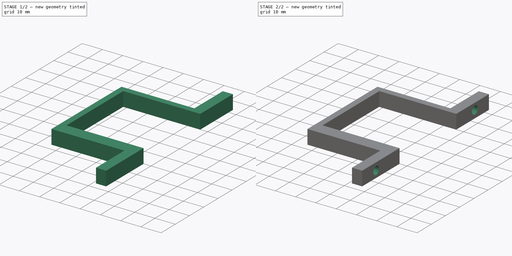
[diagram: build sequence overview — one tinted view per stage of 2, left to right]
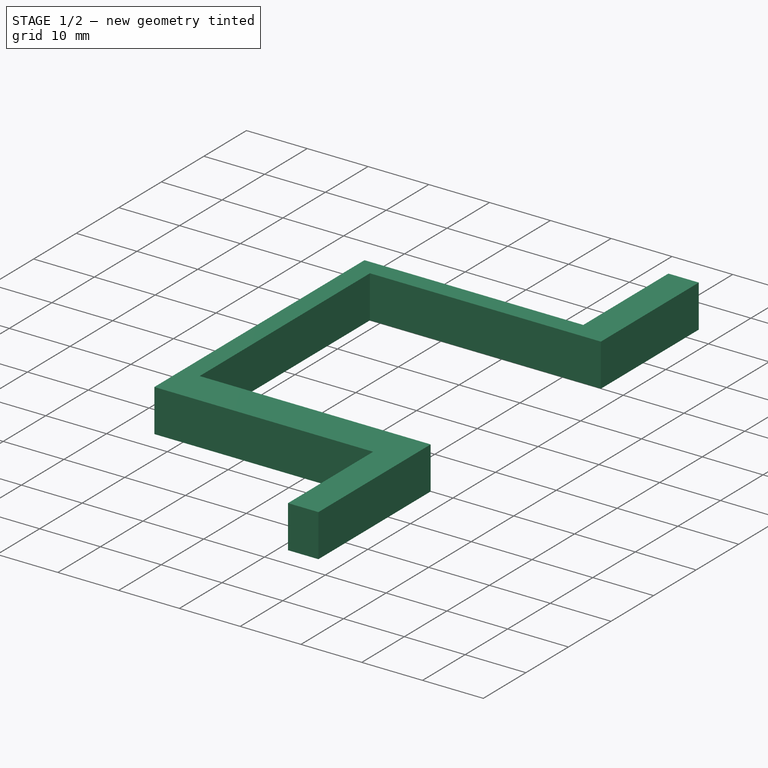
[diagram: stage 1 of 2 — iso view after this stage's code; geometry added in this stage tinted green]
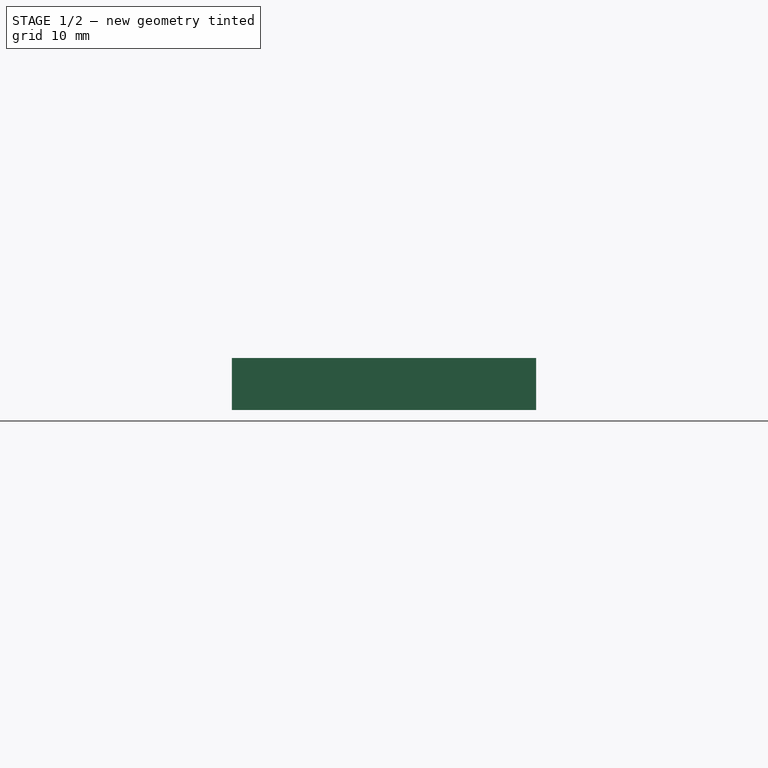
[diagram: stage 1 of 2 — front view after this stage's code; geometry added in this stage tinted green]
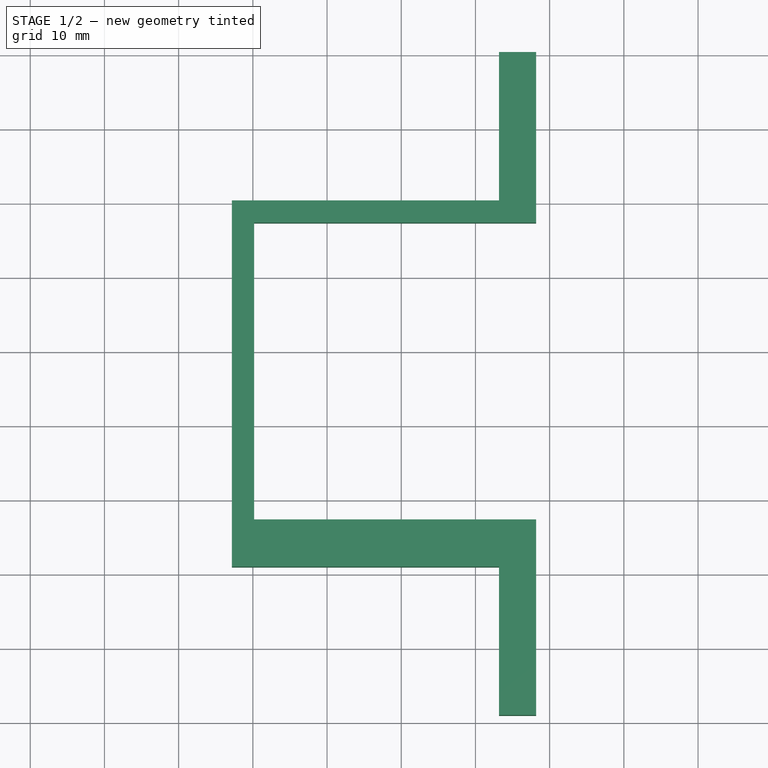
[diagram: stage 1 of 2 — top view after this stage's code; geometry added in this stage tinted green]
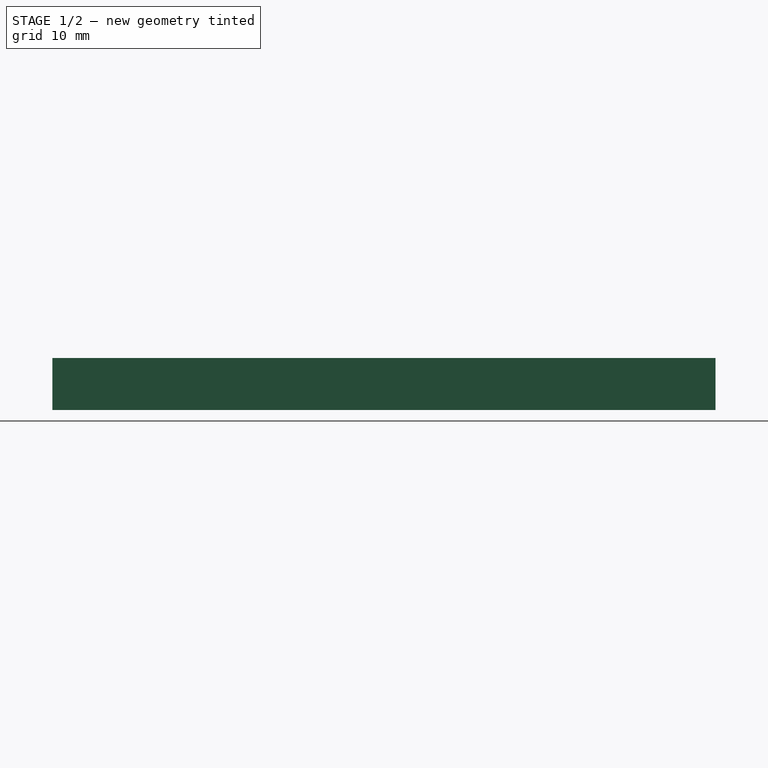
[diagram: stage 1 of 2 — right view after this stage's code; geometry added in this stage tinted green]
FCSTD DOCUMENT  (FreeCAD 0.21R33771 (Git))
Label: кривой крепёж
License: All rights reserved
LicenseURL: https://en.wikipedia.org/wiki/All_rights_reserved
objects: Sketcher::SketchObject×2, PartDesign::Pad×1, PartDesign::Hole×1, PartDesign::Body×1
note: 7 computed .brp shape members not serialized (recipe doc carries the construction recipe); baked Part::Feature solids carry a one-line shape summary decoded from their .brp

FEATURE [Sketcher::SketchObject] Sketch
  FullyConstrained = false
  MapMode = 5
  Support = -> [XY_Plane]
  sketch-geometry (12):
    g0: LineSegment StartX=3.17489 StartY=60.3626 StartZ=0 EndX=3.17489 EndY=40.3626 EndZ=0
    g1: LineSegment StartX=3.17489 StartY=40.3626 StartZ=0 EndX=-32.8251 EndY=40.3626 EndZ=0
    g2: LineSegment StartX=-32.8251 StartY=40.3626 StartZ=0 EndX=-32.8251 EndY=-9.0049 EndZ=0
    g3: LineSegment StartX=-32.8251 StartY=-9.0049 StartZ=0 EndX=3.17489 EndY=-9.0049 EndZ=0
    g4: LineSegment StartX=3.17489 StartY=-9.0049 StartZ=0 EndX=3.17489 EndY=-29.0049 EndZ=0
    g5: LineSegment StartX=3.17489 StartY=-29.0049 StartZ=0 EndX=8.17489 EndY=-29.0049 EndZ=0
    g6: LineSegment StartX=8.17489 StartY=60.3626 StartZ=0 EndX=3.17489 EndY=60.3626 EndZ=0
    g7: LineSegment StartX=8.17489 StartY=-29.0049 StartZ=0 EndX=8.17489 EndY=-2.63743 EndZ=0
    g8: LineSegment StartX=8.17489 StartY=-2.63743 StartZ=0 EndX=-29.8251 EndY=-2.63743 EndZ=0
    g9: LineSegment StartX=-29.8251 StartY=-2.63743 StartZ=0 EndX=-29.8251 EndY=37.3626 EndZ=0
    g10: LineSegment StartX=-29.8251 StartY=37.3626 StartZ=0 EndX=8.17489 EndY=37.3626 EndZ=0
    g11: LineSegment StartX=8.17489 StartY=37.3626 StartZ=0 EndX=8.17489 EndY=60.3626 EndZ=0
  constraints (33):
    c: Vertical(g0)
    c: Coincident(g0,g1)
    c: Horizontal(g1)
    c: Coincident(g1,g2)
    c: Vertical(g2)
    c: Coincident(g2,g3)
    c: Horizontal(g3)
    c: Coincident(g3,g4)
    c: Vertical(g4)
    c: DistanceY(g4,g4) = 20
    c: Equal(g4,g0)
    c: Equal(g3,g1)
    c: Coincident(g4,g5)
    c: Horizontal(g5)
    c: Coincident(g6,g0)
    c: Perpendicular(g0,g6)
    c: DistanceX(g6,g6) = 5
    c: Coincident(g5,g7)
    c: Vertical(g7)
    c: Coincident(g7,g8)
    c: Horizontal(g8)
    c: Coincident(g8,g9)
    c: Vertical(g9)
    c: Coincident(g9,g10)
    c: Horizontal(g10)
    c: Coincident(g10,g11)
    c: Coincident(g11,g6)
    c: Vertical(g11)
    c: DistanceY(g9,g9) = 40
    c: DistanceX(g10,g10) = 38
    c: DistanceX(g1,g9) = 3
    c: DistanceY(g9,g1) = 3
    c: Equal(g6,g5)
FEATURE [PartDesign::Pad] Pad
  Direction = (0,0,1)
  Length = 7
  Length2 = 10
  Profile = -> Sketch
  ReferenceAxis = -> Sketch [N_Axis]
  Type = 0
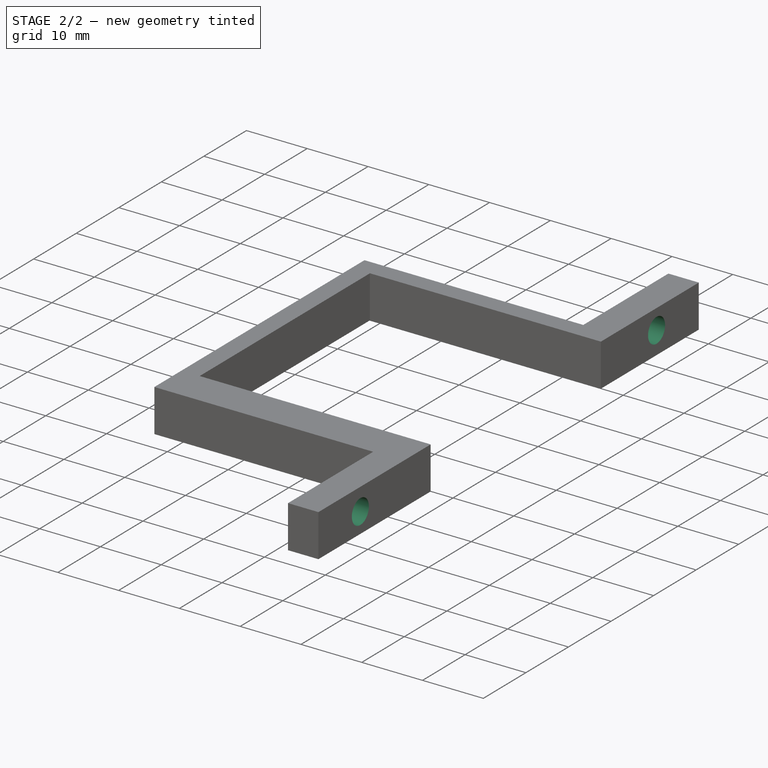
[diagram: stage 2 of 2 — iso view after this stage's code; geometry added in this stage tinted green]
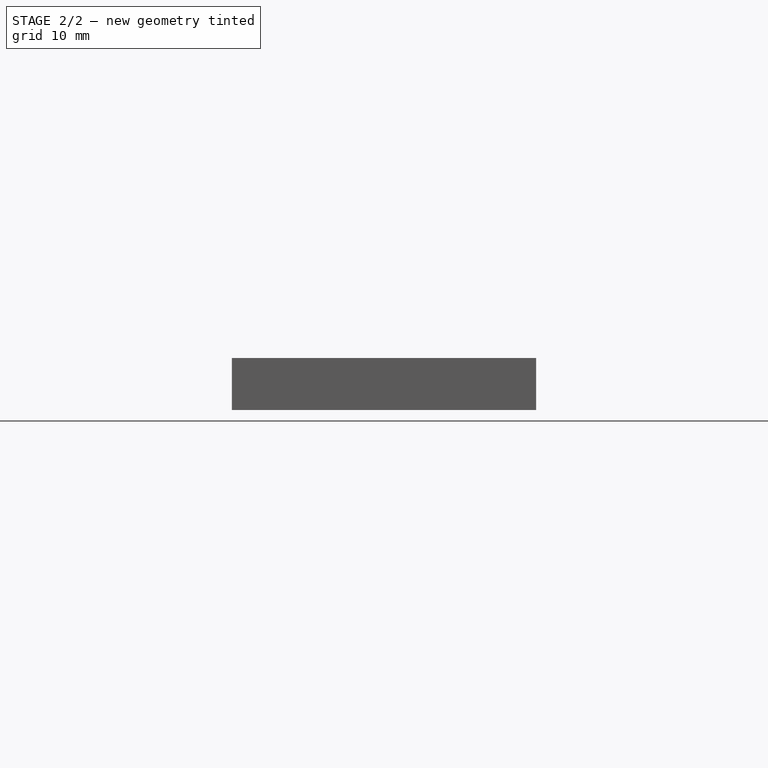
[diagram: stage 2 of 2 — front view after this stage's code; geometry added in this stage tinted green]
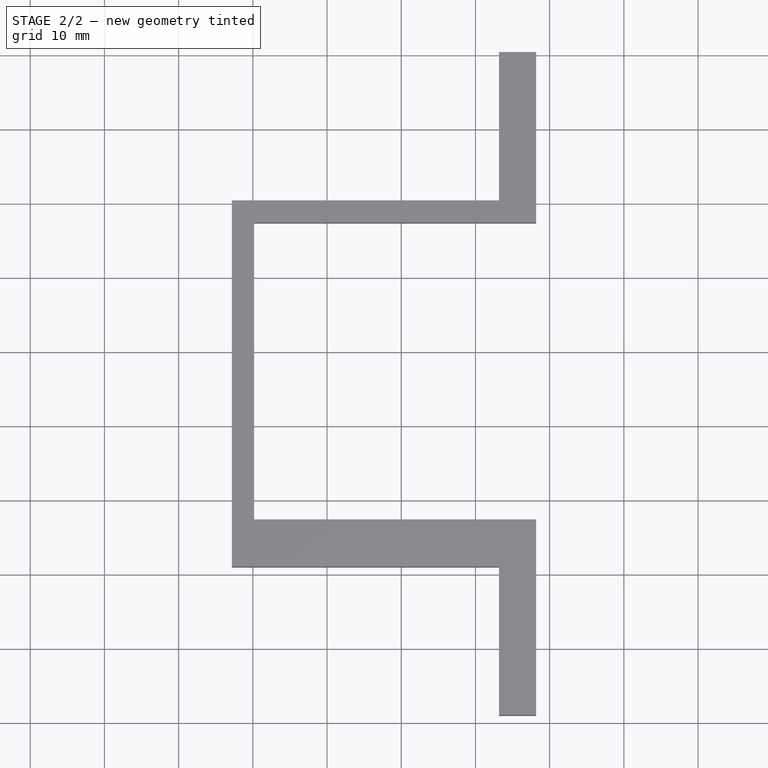
[diagram: stage 2 of 2 — top view after this stage's code; geometry added in this stage tinted green]
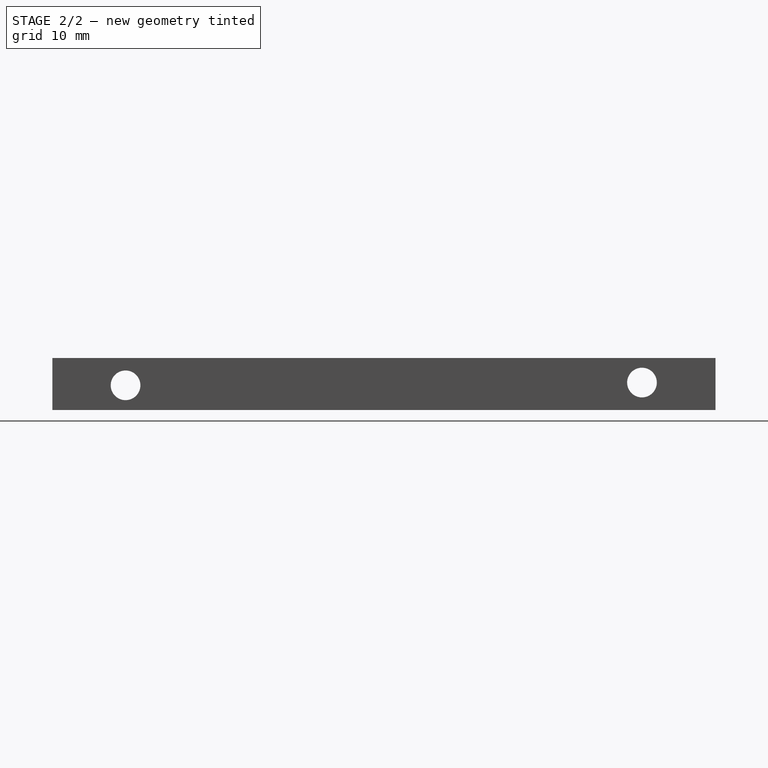
[diagram: stage 2 of 2 — right view after this stage's code; geometry added in this stage tinted green]
FEATURE [Sketcher::SketchObject] Sketch001
  FullyConstrained = false
  MapMode = 5
  Placement = pos=(3.17489,0,0) rot=(0.57735,-0.57735,-0.57735;2.0944rad)
  Support = -> [Pad]
  sketch-geometry (2):
    g0: Circle CenterX=-50.4465 CenterY=3.69314 CenterZ=0 NormalX=0 NormalY=0 NormalZ=1 AngleXU=0 Radius=2
    g1: Circle CenterX=19.1514 CenterY=3.32188 CenterZ=0 NormalX=0 NormalY=0 NormalZ=1 AngleXU=0 Radius=2
  constraints (3):
    c: Diameter(g0) = 4
    c: Diameter(g1) = 4
    c: Diameter(g1) = 4
FEATURE [PartDesign::Hole] Hole
  BaseFeature = -> Pad
  CustomThreadClearance = 0
  Depth = 25
  DepthType = 0
  Diameter = 4
  DrillForDepth = false
  DrillPoint = 1
  DrillPointAngle = 118
  HoleCutCountersinkAngle = 90
  HoleCutCustomValues = false
  HoleCutDepth = 0
  HoleCutDiameter = 6.1
  HoleCutType = 0
  ModelThread = false
  Profile = -> Sketch001
  Tapered = false
  TaperedAngle = 90
  ThreadClass = 0
  ThreadDepth = 25
  ThreadDepthType = 0
  ThreadDirection = 0
  ThreadFit = 0
  ThreadSize = 0
  ThreadType = 0
  Threaded = false
  UseCustomThreadClearance = false
FEATURE [PartDesign::Body] Body
  Group = -> [Sketch,Pad,Sketch001,Hole]
  Origin = -> Origin
  Tip = -> Hole
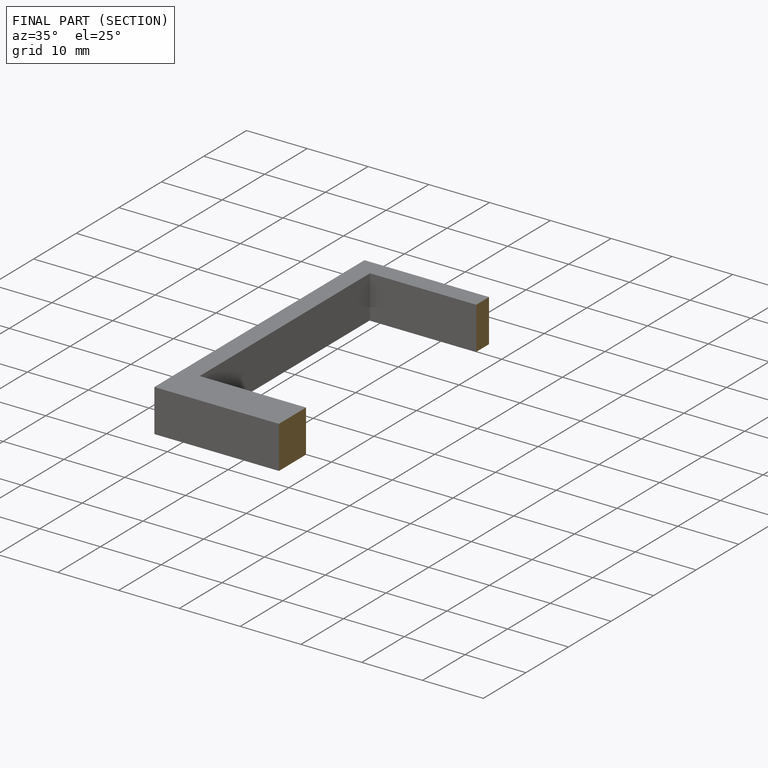
[diagram: finished part — half-section view (interior)]
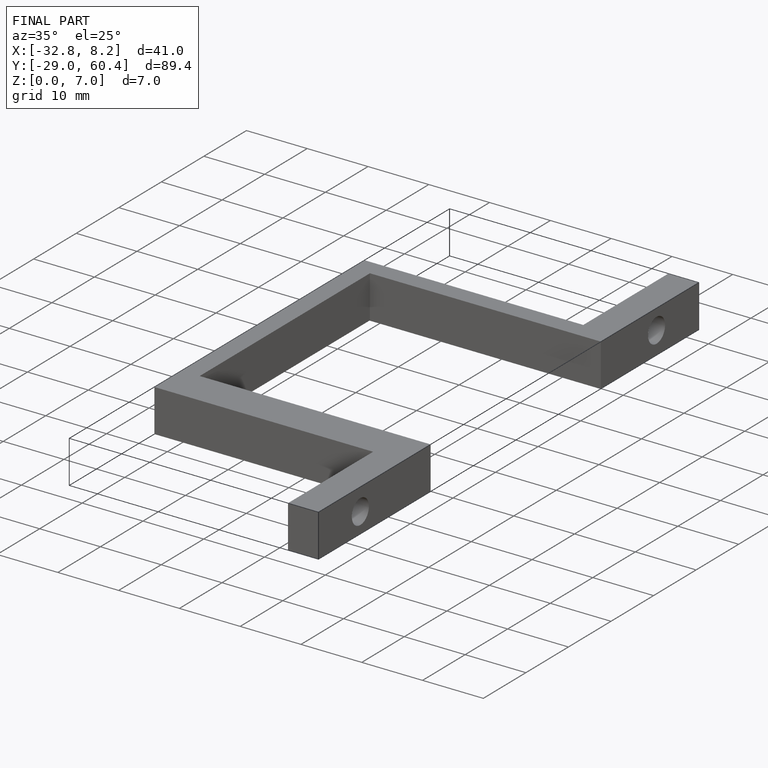
[diagram: finished part — iso view with bounding-box wireframe]
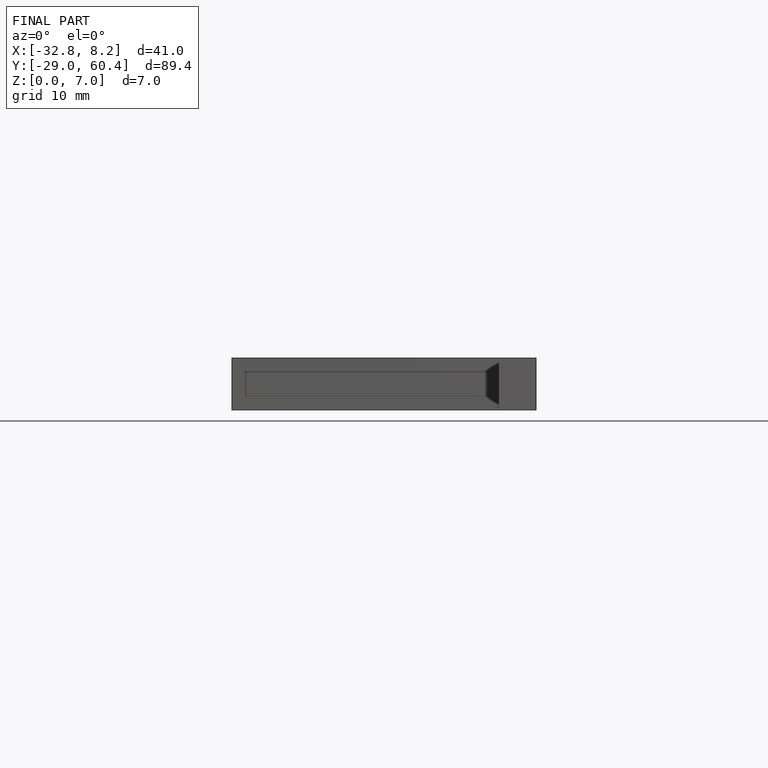
[diagram: finished part — front view with bounding-box wireframe]
